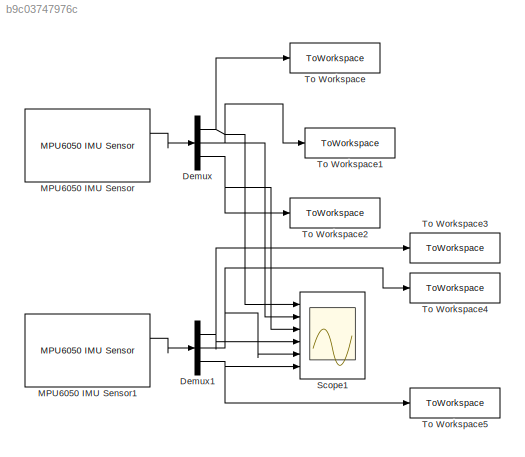
MODEL slx_b9c03747976c
KIND model
CONFIG AbsTol = auto
CONFIG EnableMultiTasking = on
CONFIG FixedStep = auto
CONFIG MaxStep = auto
CONFIG MinStep = auto
CONFIG RelTol = 1e-3
CONFIG SampleTimeConstraint = Unconstrained
CONFIG Solver = FixedStepAuto
CONFIG SolverName = FixedStepAuto
CONFIG StartTime = 0.0
CONFIG StopTime = inf
BLOCK [Demux] Demux
  Outputs = 3
  Ports = [1, 3]
BLOCK [Demux] Demux1
  Outputs = 3
  Ports = [1, 3]
BLOCK [Reference] MPU6050 IMU Sensor  REF=arduinosensorlib/MPU6050 IMU Sensor
  Ports = [0, 2]
  SourceBlock = arduinosensorlib/MPU6050 IMU Sensor
  SourceProductBaseCode = ARDUINO
  SourceType = Arduino MPU6050
BLOCK [Reference] MPU6050 IMU Sensor1  REF=arduinosensorlib/MPU6050 IMU Sensor
  Ports = [0, 2]
  SourceBlock = arduinosensorlib/MPU6050 IMU Sensor
  SourceProductBaseCode = ARDUINO
  SourceType = Arduino MPU6050
BLOCK [Scope] Scope1
  Floating = off
  NumInputPorts = 6
  Ports = [6]
  ScopeSpecificationString = Simulink.scopes.TimeScopeBlockCfg('CurrentConfiguration', extmgr.ConfigurationSet(extmgr.Configuration('Core','General UI',true),extmgr.Configuration('Core','Source UI',true),extmgr.Configuration('Sources','WiredSimulink',true,'DataLoggingVariableName','ScopeData1'),extmgr.Configuration('Visuals','Time Domain',true,'SerializedDisplays',{struct('MinYLimReal','-30.20794','MaxYLimReal','19.92439','YL...<+1783ch>
BLOCK [ToWorkspace] To Workspace
  FixptAsFi = on
  MaxDataPoints = inf
  Ports = [1]
  SampleTime = -1
  Save2DSignal = 2-D array (concatenate along first dimension)
  VariableName = x_1
BLOCK [ToWorkspace] To Workspace1
  FixptAsFi = on
  MaxDataPoints = inf
  Ports = [1]
  SampleTime = -1
  Save2DSignal = 2-D array (concatenate along first dimension)
  VariableName = y_1
BLOCK [ToWorkspace] To Workspace2
  FixptAsFi = on
  MaxDataPoints = inf
  Ports = [1]
  SampleTime = -1
  Save2DSignal = 2-D array (concatenate along first dimension)
  VariableName = z_1
BLOCK [ToWorkspace] To Workspace3
  FixptAsFi = on
  MaxDataPoints = inf
  Ports = [1]
  SampleTime = -1
  Save2DSignal = 2-D array (concatenate along first dimension)
  VariableName = x_2
BLOCK [ToWorkspace] To Workspace4
  FixptAsFi = on
  MaxDataPoints = inf
  Ports = [1]
  SampleTime = -1
  Save2DSignal = 2-D array (concatenate along first dimension)
  VariableName = y_2
BLOCK [ToWorkspace] To Workspace5
  FixptAsFi = on
  MaxDataPoints = inf
  Ports = [1]
  SampleTime = -1
  Save2DSignal = 2-D array (concatenate along first dimension)
  VariableName = z_2
NET Demux1:1 -> Scope1:4, To Workspace3:1
NET Demux1:2 -> Scope1:5, To Workspace4:1
NET Demux1:3 -> Scope1:6, To Workspace5:1
NET Demux:1 -> Scope1:1, To Workspace:1
NET Demux:2 -> Scope1:2, To Workspace1:1
NET Demux:3 -> Scope1:3, To Workspace2:1
LINE MPU6050 IMU Sensor1:1 -> Demux1:1
LINE MPU6050 IMU Sensor:1 -> Demux:1
note: NET lines group one-source signal fan-out (src -> all destinations, sorted); 1:1 wires keep LINE
